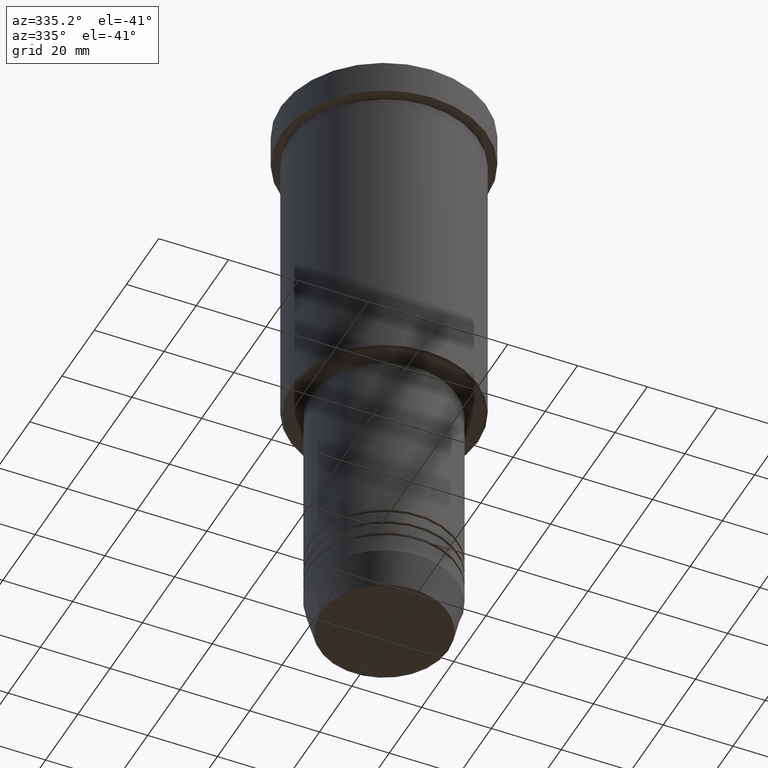
[diagram: clean part render]
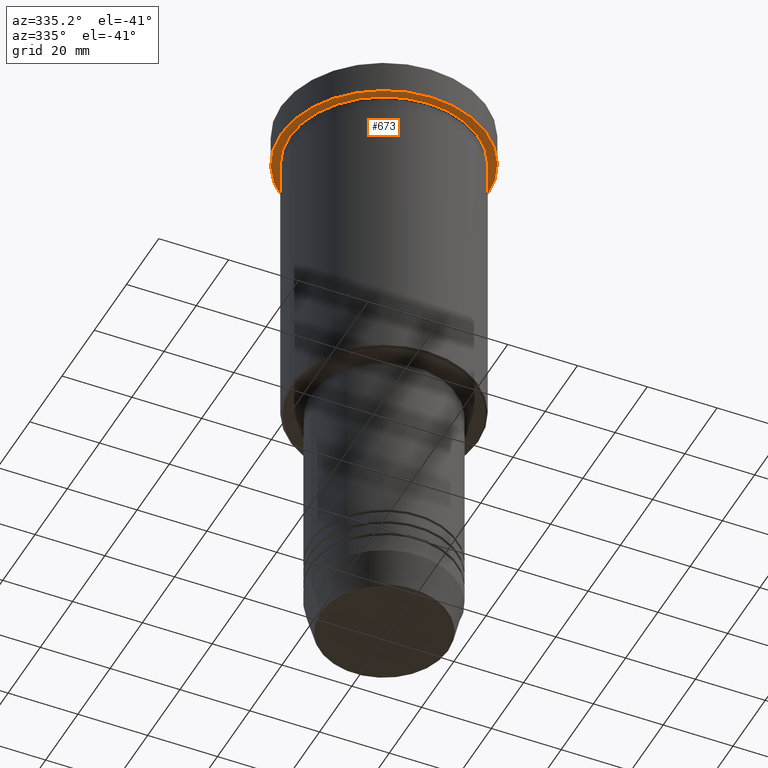
[diagram: same view with one face highlighted and labeled with its STEP entity id]
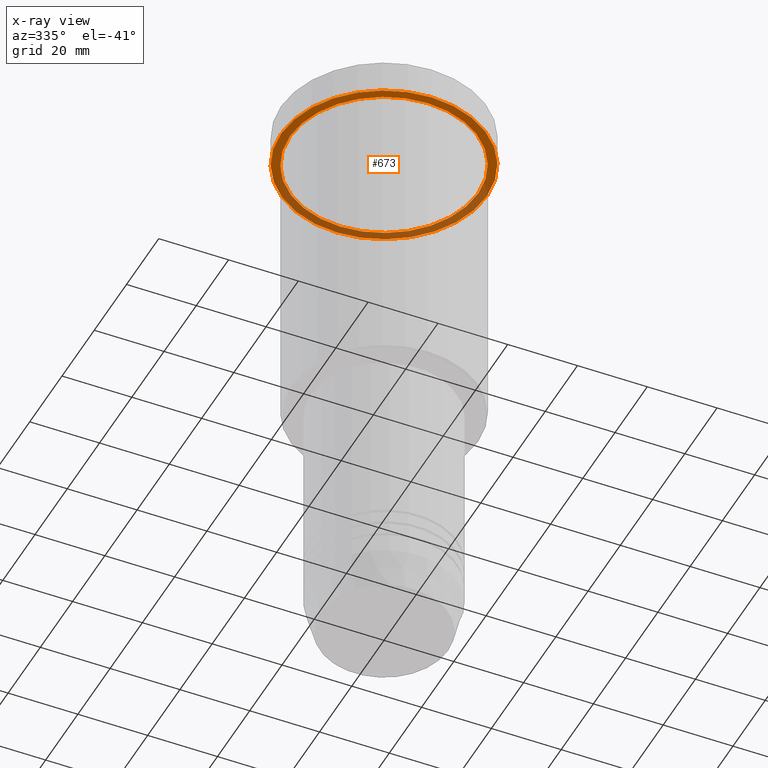
[diagram: x-ray of the same camera — body ghosted, the highlighted face saturated]
A machine part, auxiliary view. The second image highlights one B-rep face of the part: STEP entity #673.
The next image is the same camera in x-ray: the body ghosted, the highlighted face saturated — about 39% of this face is hidden behind the body in this view.
In plain terms, the highlighted planar face has unit normal (0, 0, -1).
Its self-contained STEP definition (entity closure, byte-faithful):
#11 = PLANE ( 'NONE',  #814 ) ;
#27 = DIRECTION ( 'NONE',  ( -0.000000000000000000, -0.000000000000000000, 1.000000000000000000 ) ) ;
#108 = CARTESIAN_POINT ( 'NONE',  ( 0.000000000000000000, 0.000000000000000000, -9.999999999999992895 ) ) ;
#109 = CARTESIAN_POINT ( 'NONE',  ( 0.000000000000000000, 29.50000000000000000, -9.999999999999992895 ) ) ;
#111 = EDGE_LOOP ( 'NONE', ( #1114, #1134 ) ) ;
#139 = CARTESIAN_POINT ( 'NONE',  ( 29.50000000000000000, 0.000000000000000000, -9.999999999999992895 ) ) ;
#154 = CARTESIAN_POINT ( 'NONE',  ( 0.000000000000000000, 0.000000000000000000, -9.999999999999992895 ) ) ;
#187 = FACE_BOUND ( 'NONE', #569, .T. ) ;
#210 = EDGE_CURVE ( 'NONE', #1024, #827, #748, .T. ) ;
#233 = CARTESIAN_POINT ( 'NONE',  ( 0.000000000000000000, 0.000000000000000000, -9.999999999999992895 ) ) ;
#241 = AXIS2_PLACEMENT_3D ( 'NONE', #154, #518, #438 ) ;
#258 = DIRECTION ( 'NONE',  ( -0.000000000000000000, -0.000000000000000000, 1.000000000000000000 ) ) ;
#302 = ORIENTED_EDGE ( 'NONE', *, *, #463, .T. ) ;
#368 = DIRECTION ( 'NONE',  ( 0.000000000000000000, 0.000000000000000000, -1.000000000000000000 ) ) ;
#438 = DIRECTION ( 'NONE',  ( -1.000000000000000000, 0.000000000000000000, 0.000000000000000000 ) ) ;
#450 = FACE_OUTER_BOUND ( 'NONE', #111, .T. ) ;
#463 = EDGE_CURVE ( 'NONE', #718, #888, #841, .T. ) ;
#464 = CIRCLE ( 'NONE', #901, 29.50000000000000000 ) ;
#508 = DIRECTION ( 'NONE',  ( -1.000000000000000000, 0.000000000000000000, 0.000000000000000000 ) ) ;
#518 = DIRECTION ( 'NONE',  ( -0.000000000000000000, -0.000000000000000000, 1.000000000000000000 ) ) ;
#531 = EDGE_CURVE ( 'NONE', #888, #718, #845, .T. ) ;
#569 = EDGE_LOOP ( 'NONE', ( #1020, #302 ) ) ;
#590 = CARTESIAN_POINT ( 'NONE',  ( 0.000000000000000000, 0.000000000000000000, -9.999999999999992895 ) ) ;
#623 = CARTESIAN_POINT ( 'NONE',  ( -29.50000000000000000, 3.612708057484691604E-15, -9.999999999999992895 ) ) ;
#673 = ADVANCED_FACE ( 'NONE', ( #187, #450 ), #11, .T. ) ;
#690 = DIRECTION ( 'NONE',  ( -0.000000000000000000, -0.000000000000000000, 1.000000000000000000 ) ) ;
#718 = VERTEX_POINT ( 'NONE', #739 ) ;
#737 = DIRECTION ( 'NONE',  ( 1.000000000000000000, 0.000000000000000000, 0.000000000000000000 ) ) ;
#739 = CARTESIAN_POINT ( 'NONE',  ( 27.00000000000000355, 3.306546357697854128E-15, -9.999999999999992895 ) ) ;
#747 = EDGE_CURVE ( 'NONE', #827, #1024, #464, .T. ) ;
#748 = CIRCLE ( 'NONE', #897, 29.50000000000000000 ) ;
#772 = CARTESIAN_POINT ( 'NONE',  ( -27.00000000000000355, 0.000000000000000000, -9.999999999999992895 ) ) ;
#814 = AXIS2_PLACEMENT_3D ( 'NONE', #109, #368, #1106 ) ;
#827 = VERTEX_POINT ( 'NONE', #623 ) ;
#841 = CIRCLE ( 'NONE', #963, 27.00000000000000355 ) ;
#845 = CIRCLE ( 'NONE', #241, 27.00000000000000355 ) ;
#888 = VERTEX_POINT ( 'NONE', #772 ) ;
#897 = AXIS2_PLACEMENT_3D ( 'NONE', #108, #27, #737 ) ;
#901 = AXIS2_PLACEMENT_3D ( 'NONE', #233, #690, #972 ) ;
#963 = AXIS2_PLACEMENT_3D ( 'NONE', #590, #258, #508 ) ;
#972 = DIRECTION ( 'NONE',  ( 1.000000000000000000, 0.000000000000000000, 0.000000000000000000 ) ) ;
#1020 = ORIENTED_EDGE ( 'NONE', *, *, #531, .T. ) ;
#1024 = VERTEX_POINT ( 'NONE', #139 ) ;
#1106 = DIRECTION ( 'NONE',  ( -1.000000000000000000, 0.000000000000000000, -0.000000000000000000 ) ) ;
#1114 = ORIENTED_EDGE ( 'NONE', *, *, #210, .F. ) ;
#1134 = ORIENTED_EDGE ( 'NONE', *, *, #747, .F. ) ;